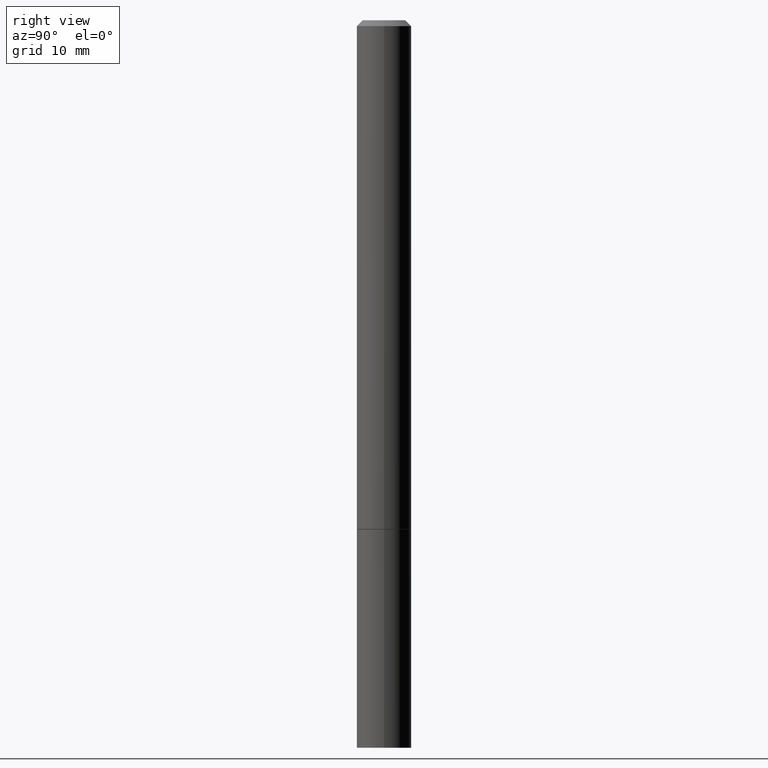
[diagram: clean part render]
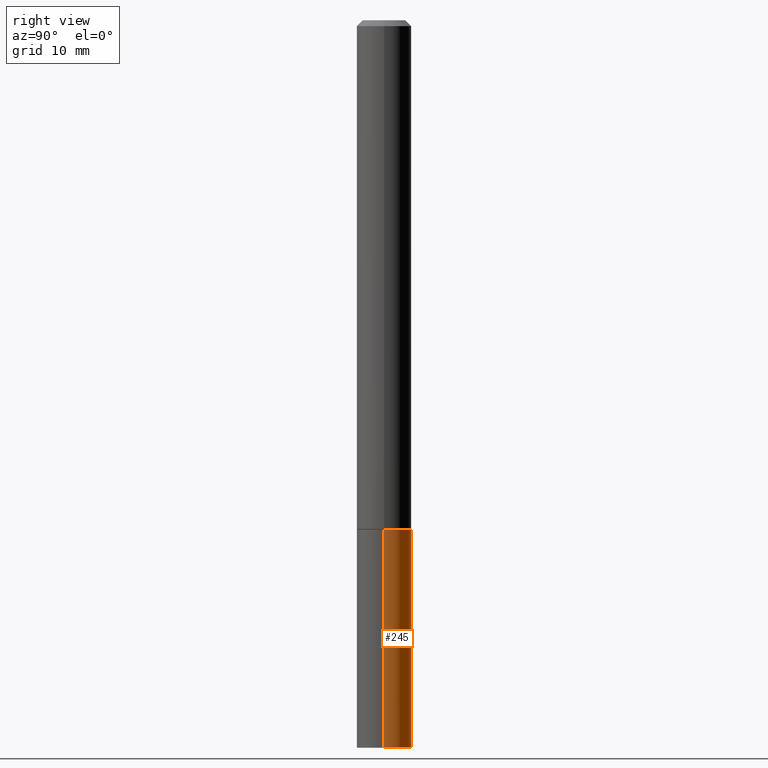
[diagram: same view with one face highlighted and labeled with its STEP entity id]
A machine part, right view. The second image highlights one B-rep face of the part: STEP entity #245.
In plain terms, the highlighted cylindrical surface (edge-blend (fillet) strip) has radius 2.3813 mm, axis along (-0, 0, 1).
Its self-contained STEP definition (entity closure, byte-faithful):
#1 = DIRECTION ( 'NONE',  ( -2.445468806185136597E-29, 3.491481338843145583E-15, 1.000000000000000000 ) ) ;
#21 = CIRCLE ( 'NONE', #151, 0.09375000000000001388 ) ;
#23 = CARTESIAN_POINT ( 'NONE',  ( 4.279570410823989044E-29, -6.110092342975505460E-15, -1.750000000000000222 ) ) ;
#31 = DIRECTION ( 'NONE',  ( 1.000000000000000000, -6.982962677686272233E-15, 0.000000000000000000 ) ) ;
#40 = ORIENTED_EDGE ( 'NONE', *, *, #145, .F. ) ;
#43 = VECTOR ( 'NONE', #323, 39.37007874015748143 ) ;
#49 = DIRECTION ( 'NONE',  ( -2.445468806185136597E-29, 3.491481338843145583E-15, 1.000000000000000000 ) ) ;
#51 = CIRCLE ( 'NONE', #264, 0.09375000000000001388 ) ;
#55 = DIRECTION ( 'NONE',  ( 1.000000000000000000, -6.982962677686261189E-15, 0.000000000000000000 ) ) ;
#56 = CARTESIAN_POINT ( 'NONE',  ( 6.113672015462842613E-29, -8.728703347107864943E-15, -2.500000000000000000 ) ) ;
#60 = CYLINDRICAL_SURFACE ( 'NONE', #332, 0.09375000000000001388 ) ;
#86 = CARTESIAN_POINT ( 'NONE',  ( 0.000000000000000000, 0.000000000000000000, 0.000000000000000000 ) ) ;
#87 = VERTEX_POINT ( 'NONE', #177 ) ;
#91 = CARTESIAN_POINT ( 'NONE',  ( -0.09374999999999984734, -8.074050596074776650E-15, -2.500000000000000000 ) ) ;
#115 = LINE ( 'NONE', #298, #43 ) ;
#124 = LINE ( 'NONE', #276, #136 ) ;
#134 = VERTEX_POINT ( 'NONE', #237 ) ;
#136 = VECTOR ( 'NONE', #270, 39.37007874015748143 ) ;
#145 = EDGE_CURVE ( 'NONE', #287, #134, #115, .T. ) ;
#151 = AXIS2_PLACEMENT_3D ( 'NONE', #56, #190, #31 ) ;
#173 = EDGE_LOOP ( 'NONE', ( #355, #229, #333, #40 ) ) ;
#175 = EDGE_CURVE ( 'NONE', #134, #87, #51, .T. ) ;
#177 = CARTESIAN_POINT ( 'NONE',  ( -0.09375000000000001388, -6.753264030266591277E-15, -1.750000000000000222 ) ) ;
#190 = DIRECTION ( 'NONE',  ( -2.445468806185136597E-29, 3.491481338843145583E-15, 1.000000000000000000 ) ) ;
#229 = ORIENTED_EDGE ( 'NONE', *, *, #246, .T. ) ;
#237 = CARTESIAN_POINT ( 'NONE',  ( 0.09375000000000001388, -6.764745094008592175E-15, -1.750000000000000222 ) ) ;
#245 = ADVANCED_FACE ( 'NONE', ( #328 ), #60, .T. ) ;
#246 = EDGE_CURVE ( 'NONE', #390, #87, #124, .T. ) ;
#264 = AXIS2_PLACEMENT_3D ( 'NONE', #23, #49, #55 ) ;
#270 = DIRECTION ( 'NONE',  ( -2.445468806185136877E-29, 3.491481338843145188E-15, 1.000000000000000000 ) ) ;
#276 = CARTESIAN_POINT ( 'NONE',  ( -0.09375000000000001388, 6.661338147750940229E-16, -4.611501647113973995E-30 ) ) ;
#287 = VERTEX_POINT ( 'NONE', #330 ) ;
#298 = CARTESIAN_POINT ( 'NONE',  ( 0.09375000000000001388, -6.546527510330875041E-16, 4.571415727308690506E-30 ) ) ;
#305 = DIRECTION ( 'NONE',  ( 1.000000000000000000, -6.982962677686265922E-15, 4.876176775795935793E-29 ) ) ;
#321 = EDGE_CURVE ( 'NONE', #287, #390, #21, .T. ) ;
#323 = DIRECTION ( 'NONE',  ( -2.445468806185136877E-29, 3.491481338843145188E-15, 1.000000000000000000 ) ) ;
#328 = FACE_OUTER_BOUND ( 'NONE', #173, .T. ) ;
#330 = CARTESIAN_POINT ( 'NONE',  ( 0.09374999999999984734, -9.371875034398942871E-15, -2.500000000000000000 ) ) ;
#332 = AXIS2_PLACEMENT_3D ( 'NONE', #86, #1, #305 ) ;
#333 = ORIENTED_EDGE ( 'NONE', *, *, #175, .F. ) ;
#355 = ORIENTED_EDGE ( 'NONE', *, *, #321, .T. ) ;
#390 = VERTEX_POINT ( 'NONE', #91 ) ;